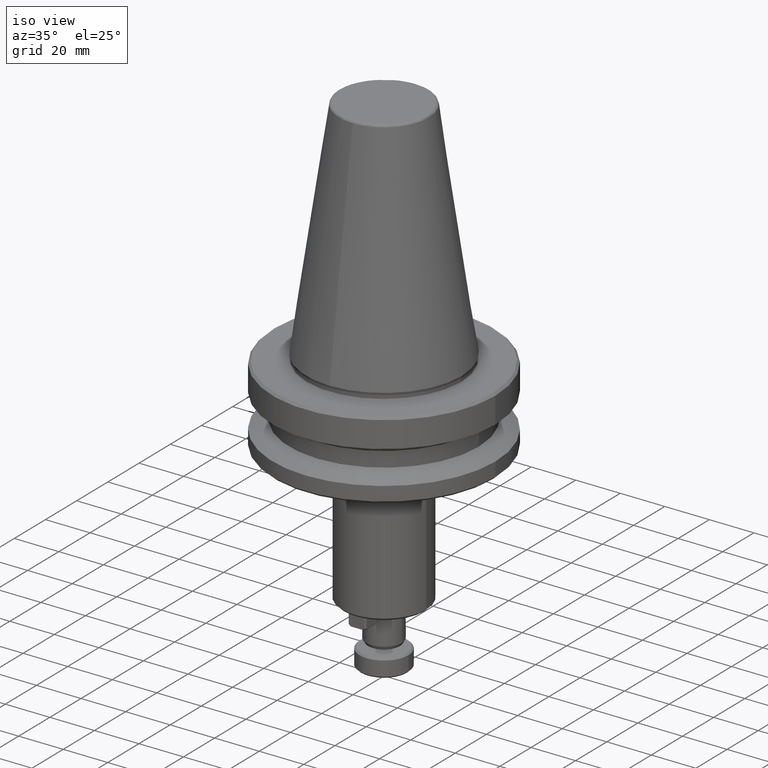
[diagram: clean part render]
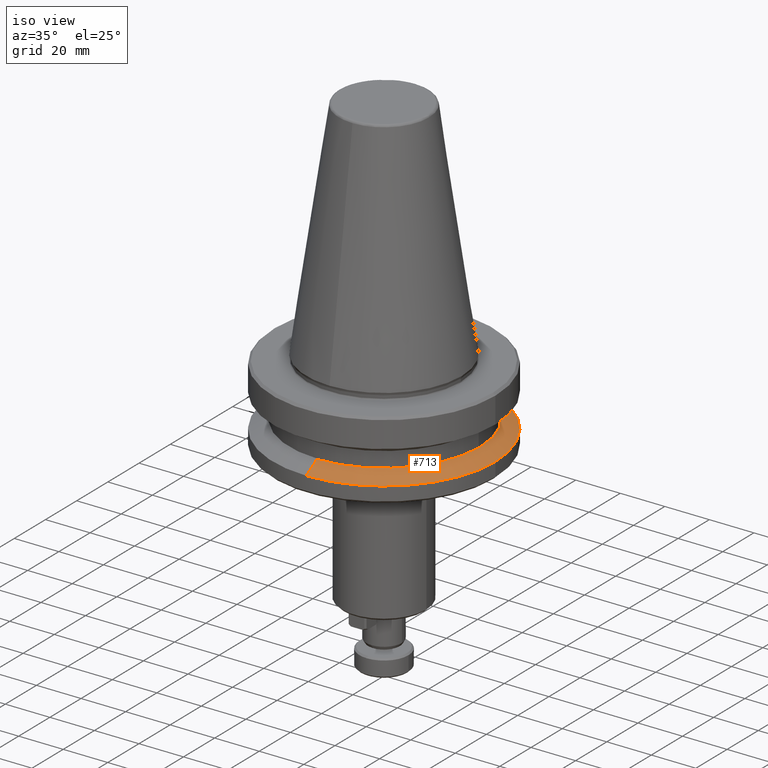
[diagram: same view with one face highlighted and labeled with its STEP entity id]
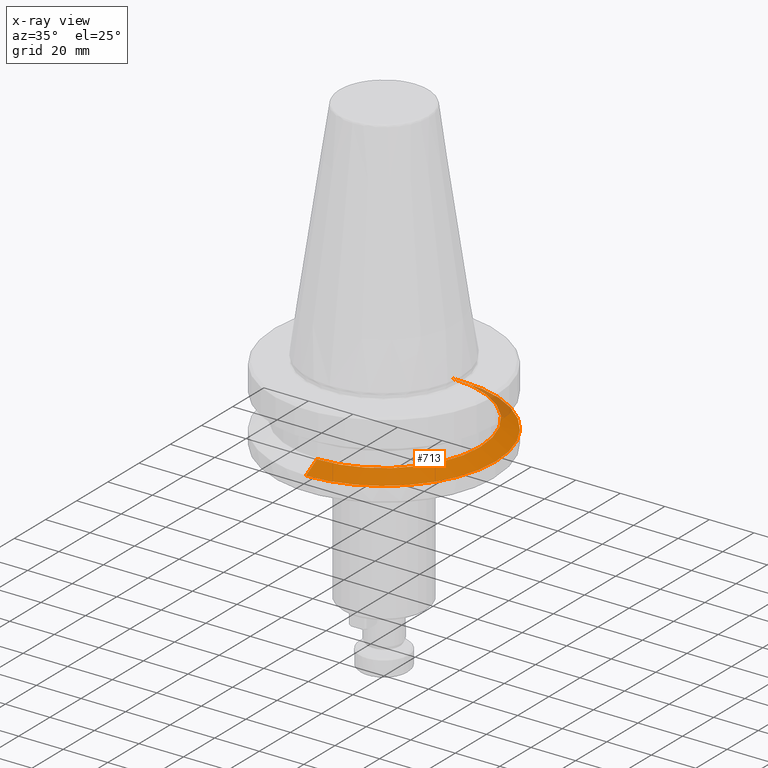
[diagram: x-ray of the same camera — body ghosted, the highlighted face saturated]
A machine part, iso view. The second image highlights one B-rep face of the part: STEP entity #713.
The next image is the same camera in x-ray: the body ghosted, the highlighted face saturated — about 6% of this face is hidden behind the body in this view.
In plain terms, the highlighted conical surface has half-angle 60 deg.
Its self-contained STEP definition (entity closure, byte-faithful):
#8 = VERTEX_POINT ( 'NONE', #2660 ) ;
#33 = LINE ( 'NONE', #1959, #2391 ) ;
#72 = VECTOR ( 'NONE', #1744, 1000.000000000000000 ) ;
#207 = ORIENTED_EDGE ( 'NONE', *, *, #1221, .T. ) ;
#269 = EDGE_CURVE ( 'NONE', #2369, #2190, #33, .T. ) ;
#344 = DIRECTION ( 'NONE',  ( -1.000000000000000000, 0.0000000000000000000, 0.0000000000000000000 ) ) ;
#346 = DIRECTION ( 'NONE',  ( -0.0000000000000000000, -0.0000000000000000000, 1.000000000000000000 ) ) ;
#349 = CARTESIAN_POINT ( 'NONE',  ( 0.0000000000000000000, 0.0000000000000000000, -30.69977999677324100 ) ) ;
#392 = EDGE_CURVE ( 'NONE', #1949, #2190, #955, .T. ) ;
#394 = AXIS2_PLACEMENT_3D ( 'NONE', #1599, #1596, #1594 ) ;
#481 = CIRCLE ( 'NONE', #2566, 49.99999999999998600 ) ;
#509 = EDGE_CURVE ( 'NONE', #8, #903, #1780, .T. ) ;
#612 = EDGE_CURVE ( 'NONE', #2369, #8, #2126, .T. ) ;
#620 = FACE_OUTER_BOUND ( 'NONE', #1432, .T. ) ;
#713 = ADVANCED_FACE ( 'NONE', ( #620 ), #1680, .T. ) ;
#742 = CARTESIAN_POINT ( 'NONE',  ( 0.0000000000000000000, 43.07217782649104300, -26.69999999999998900 ) ) ;
#841 = CARTESIAN_POINT ( 'NONE',  ( 6.123233995736765300E-015, -49.99999999999999300, -30.69977999677324100 ) ) ;
#903 = VERTEX_POINT ( 'NONE', #841 ) ;
#955 = CIRCLE ( 'NONE', #1521, 49.99999999999998600 ) ;
#1042 = CARTESIAN_POINT ( 'NONE',  ( 0.0000000000000000000, 49.99999999999999300, -30.69977999677324100 ) ) ;
#1221 = EDGE_CURVE ( 'NONE', #903, #1949, #481, .T. ) ;
#1245 = ORIENTED_EDGE ( 'NONE', *, *, #392, .T. ) ;
#1414 = DIRECTION ( 'NONE',  ( 0.0000000000000000000, 1.000000000000000000, 0.0000000000000000000 ) ) ;
#1428 = CARTESIAN_POINT ( 'NONE',  ( 49.99999999999999300, 0.0000000000000000000, -30.69977999677324100 ) ) ;
#1429 = DIRECTION ( 'NONE',  ( 0.0000000000000000000, 3.469446951953614200E-017, -1.000000000000000000 ) ) ;
#1432 = EDGE_LOOP ( 'NONE', ( #1978, #2039, #207, #1245, #2318 ) ) ;
#1433 = CARTESIAN_POINT ( 'NONE',  ( 0.0000000000000000000, 0.0000000000000000000, -30.69977999677324500 ) ) ;
#1521 = AXIS2_PLACEMENT_3D ( 'NONE', #1730, #1751, #1791 ) ;
#1594 = DIRECTION ( 'NONE',  ( 0.0000000000000000000, 1.000000000000000000, 0.0000000000000000000 ) ) ;
#1596 = DIRECTION ( 'NONE',  ( 0.0000000000000000000, 3.469446951953614200E-017, -1.000000000000000000 ) ) ;
#1599 = CARTESIAN_POINT ( 'NONE',  ( 0.0000000000000000000, -1.387702451829001000E-016, -26.69999999999998900 ) ) ;
#1680 = CONICAL_SURFACE ( 'NONE', #2231, 50.00000000000000000, 1.047197551196597600 ) ;
#1730 = CARTESIAN_POINT ( 'NONE',  ( 0.0000000000000000000, 0.0000000000000000000, -30.69977999677324100 ) ) ;
#1744 = DIRECTION ( 'NONE',  ( 1.060575238724906800E-016, -0.8660254037844386000, -0.5000000000000001100 ) ) ;
#1751 = DIRECTION ( 'NONE',  ( -0.0000000000000000000, -0.0000000000000000000, 1.000000000000000000 ) ) ;
#1780 = LINE ( 'NONE', #1800, #72 ) ;
#1791 = DIRECTION ( 'NONE',  ( -1.000000000000000000, 0.0000000000000000000, 0.0000000000000000000 ) ) ;
#1800 = CARTESIAN_POINT ( 'NONE',  ( 6.123233995736766100E-015, -50.00000000000000000, -30.69977999677324500 ) ) ;
#1949 = VERTEX_POINT ( 'NONE', #1428 ) ;
#1959 = CARTESIAN_POINT ( 'NONE',  ( 0.0000000000000000000, 50.00000000000000000, -30.69977999677324500 ) ) ;
#1978 = ORIENTED_EDGE ( 'NONE', *, *, #612, .T. ) ;
#2039 = ORIENTED_EDGE ( 'NONE', *, *, #509, .T. ) ;
#2126 = CIRCLE ( 'NONE', #394, 43.07217782649104300 ) ;
#2151 = DIRECTION ( 'NONE',  ( 0.0000000000000000000, 0.8660254037844386000, -0.5000000000000001100 ) ) ;
#2190 = VERTEX_POINT ( 'NONE', #1042 ) ;
#2231 = AXIS2_PLACEMENT_3D ( 'NONE', #1433, #1429, #1414 ) ;
#2318 = ORIENTED_EDGE ( 'NONE', *, *, #269, .F. ) ;
#2369 = VERTEX_POINT ( 'NONE', #742 ) ;
#2391 = VECTOR ( 'NONE', #2151, 1000.000000000000000 ) ;
#2566 = AXIS2_PLACEMENT_3D ( 'NONE', #349, #346, #344 ) ;
#2660 = CARTESIAN_POINT ( 'NONE',  ( 5.699027233244275200E-015, -43.07217782649104300, -26.69999999999998900 ) ) ;